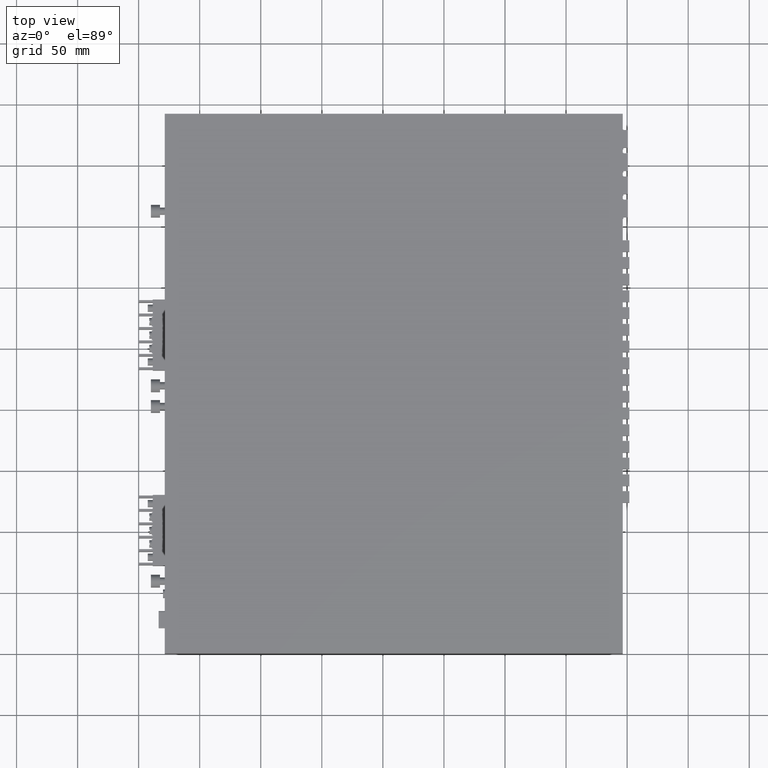
[diagram: clean part render]
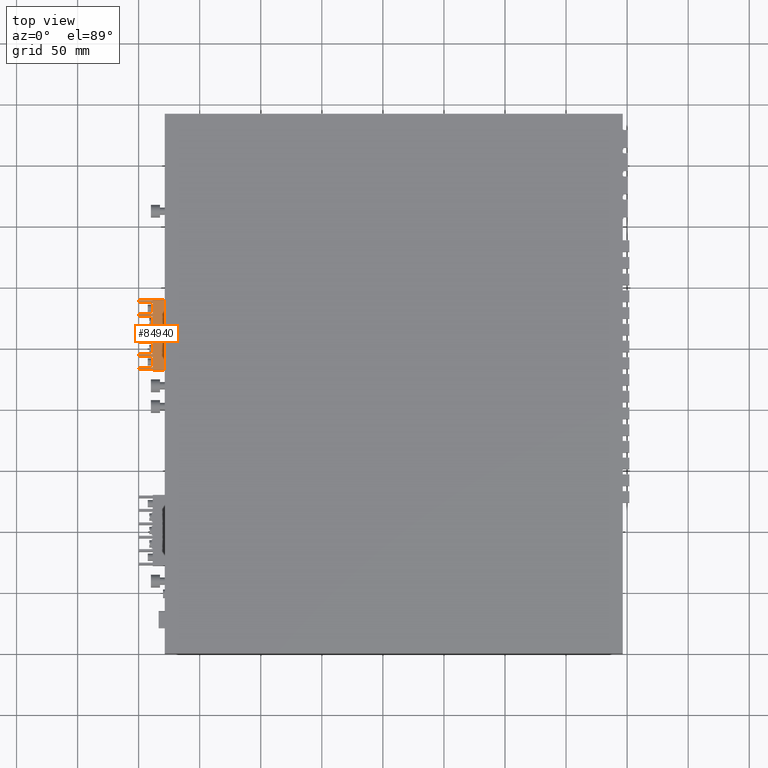
[diagram: same view with one face highlighted and labeled with its STEP entity id]
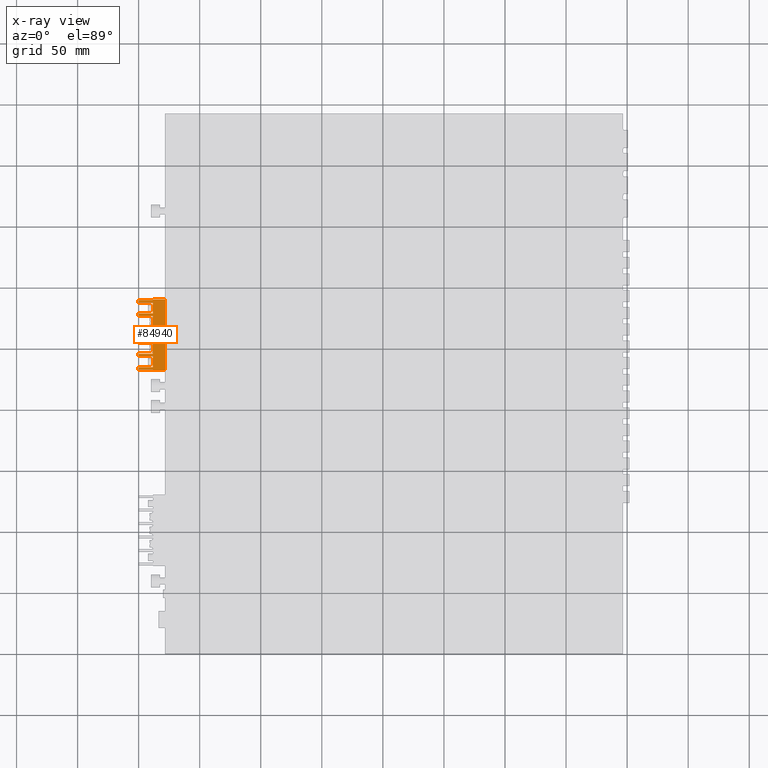
[diagram: x-ray of the same camera — body ghosted, the highlighted face saturated]
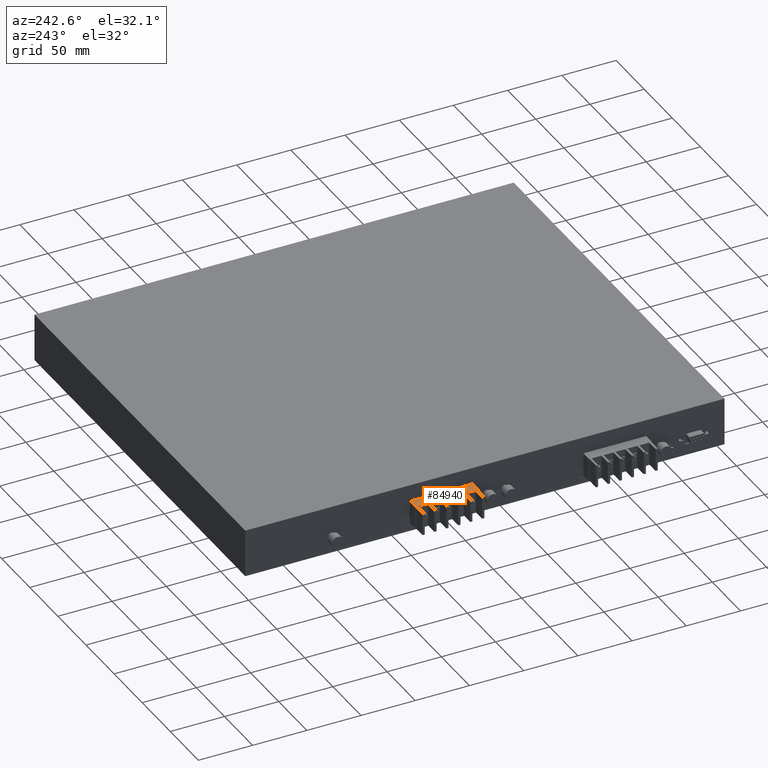
[diagram: same view with one face highlighted and labeled with its STEP entity id]
A machine part, top view. The second image highlights one B-rep face of the part: STEP entity #84940.
The next image is the same camera in x-ray: the body ghosted, the highlighted face saturated — about 0% of this face is hidden behind the body in this view.
A second angle (auxiliary view) of the same face is appended — the face is thin or edge-on in the first view.
In plain terms, the highlighted planar face has unit normal (0, 0, 1).
Its self-contained STEP definition (entity closure, byte-faithful):
#36770=CARTESIAN_POINT('',(69.4060130425647,-10.9963677763395,0.));
#36780=DIRECTION('',(0.,0.,-1.));
#36790=VECTOR('',#36780,1.);
#36800=LINE('',#36770,#36790);
#36810=CARTESIAN_POINT('',(69.4060130425647,-10.9963677763395,
0.199999999980264));
#36820=VERTEX_POINT('',#36810);
#36830=CARTESIAN_POINT('',(69.4060130425647,-10.9963677763395,
-9.90000000001973));
#36840=VERTEX_POINT('',#36830);
#36850=EDGE_CURVE('',#36820,#36840,#36800,.T.);
#39360=CARTESIAN_POINT('',(22.9060130425647,-10.9963677763395,
-9.90000000001973));
#39370=VERTEX_POINT('',#39360);
#39400=CARTESIAN_POINT('',(0.,-10.9963677763395,-9.90000000001973));
#39410=DIRECTION('',(-1.,0.,0.));
#39420=VECTOR('',#39410,1.);
#39430=LINE('',#39400,#39420);
#39440=CARTESIAN_POINT('',(13.9060130425647,-10.9963677763395,
-9.90000000001973));
#39450=VERTEX_POINT('',#39440);
#39460=EDGE_CURVE('',#39370,#39450,#39430,.T.);
#48180=CARTESIAN_POINT('',(44.9060130425647,-10.9963677763395,0.));
#48190=DIRECTION('',(0.,0.,1.));
#48200=VECTOR('',#48190,1.);
#48210=LINE('',#48180,#48200);
#48220=CARTESIAN_POINT('',(44.9060130425647,-10.9963677763395,
-21.4000000000197));
#48230=VERTEX_POINT('',#48220);
#48240=CARTESIAN_POINT('',(44.9060130425647,-10.9963677763395,
-9.90000000001973));
#48250=VERTEX_POINT('',#48240);
#48260=EDGE_CURVE('',#48230,#48250,#48210,.T.);
#52240=CARTESIAN_POINT('',(0.,-10.9963677763395,-9.90000000001973));
#52250=DIRECTION('',(-1.,0.,0.));
#52260=VECTOR('',#52250,1.);
#52270=LINE('',#52240,#52260);
#52280=CARTESIAN_POINT('',(35.9060130425647,-10.9963677763395,
-9.90000000001973));
#52290=VERTEX_POINT('',#52280);
#52300=EDGE_CURVE('',#48250,#52290,#52270,.T.);
#53780=CARTESIAN_POINT('',(24.9060130425647,-10.9963677763395,
-21.4000000000197));
#53790=VERTEX_POINT('',#53780);
#53840=CARTESIAN_POINT('',(0.,-10.9963677763395,-21.4000000000197));
#53850=DIRECTION('',(1.,0.,0.));
#53860=VECTOR('',#53850,1.);
#53870=LINE('',#53840,#53860);
#53880=CARTESIAN_POINT('',(22.9060130425647,-10.9963677763395,
-21.4000000000197));
#53890=VERTEX_POINT('',#53880);
#53900=EDGE_CURVE('',#53890,#53790,#53870,.T.);
#57490=CARTESIAN_POINT('',(11.4060130425647,-10.9963677763395,
0.199999999980264));
#57500=VERTEX_POINT('',#57490);
#57530=CARTESIAN_POINT('',(0.,-10.9963677763395,0.199999999980264));
#57540=DIRECTION('',(-1.,0.,0.));
#57550=VECTOR('',#57540,1.);
#57560=LINE('',#57530,#57550);
#57570=EDGE_CURVE('',#36820,#57500,#57560,.T.);
#75580=CARTESIAN_POINT('',(57.9060130425647,-10.9963677763395,
-21.4000000000197));
#75590=VERTEX_POINT('',#75580);
#75620=CARTESIAN_POINT('',(0.,-10.9963677763395,-21.4000000000197));
#75630=DIRECTION('',(1.,0.,0.));
#75640=VECTOR('',#75630,1.);
#75650=LINE('',#75620,#75640);
#75660=CARTESIAN_POINT('',(55.9060130425647,-10.9963677763395,
-21.4000000000197));
#75670=VERTEX_POINT('',#75660);
#75680=EDGE_CURVE('',#75670,#75590,#75650,.T.);
#83220=CARTESIAN_POINT('',(9.95594689256465,-10.9963677763395,
0.740066149980265));
#83230=DIRECTION('',(-0.,1.,0.));
#83240=DIRECTION('',(1.,0.,0.));
#83250=AXIS2_PLACEMENT_3D('',#83220,#83230,#83240);
#83260=PLANE('',#83250);
#83270=ORIENTED_EDGE('',*,*,#36850,.T.);
#83280=ORIENTED_EDGE('',*,*,#57570,.F.);
#83290=CARTESIAN_POINT('',(11.4060130425647,-10.9963677763395,0.));
#83300=DIRECTION('',(0.,0.,1.));
#83310=VECTOR('',#83300,1.);
#83320=LINE('',#83290,#83310);
#83330=CARTESIAN_POINT('',(11.4060130425647,-10.9963677763395,
-9.90000000001973));
#83340=VERTEX_POINT('',#83330);
#83350=EDGE_CURVE('',#83340,#57500,#83320,.T.);
#83360=ORIENTED_EDGE('',*,*,#83350,.T.);
#83370=CARTESIAN_POINT('',(0.,-10.9963677763395,-9.90000000001973));
#83380=DIRECTION('',(-1.,0.,0.));
#83390=VECTOR('',#83380,1.);
#83400=LINE('',#83370,#83390);
#83410=CARTESIAN_POINT('',(11.9060130425647,-10.9963677763395,
-9.90000000001973));
#83420=VERTEX_POINT('',#83410);
#83430=EDGE_CURVE('',#83420,#83340,#83400,.T.);
#83440=ORIENTED_EDGE('',*,*,#83430,.T.);
#83450=CARTESIAN_POINT('',(11.9060130425647,-10.9963677763395,0.));
#83460=DIRECTION('',(0.,0.,1.));
#83470=VECTOR('',#83460,1.);
#83480=LINE('',#83450,#83470);
#83490=CARTESIAN_POINT('',(11.9060130425647,-10.9963677763395,
-21.4000000000197));
#83500=VERTEX_POINT('',#83490);
#83510=EDGE_CURVE('',#83500,#83420,#83480,.T.);
#83520=ORIENTED_EDGE('',*,*,#83510,.T.);
#83530=CARTESIAN_POINT('',(0.,-10.9963677763395,-21.4000000000197));
#83540=DIRECTION('',(1.,0.,0.));
#83550=VECTOR('',#83540,1.);
#83560=LINE('',#83530,#83550);
#83570=CARTESIAN_POINT('',(13.9060130425647,-10.9963677763395,
-21.4000000000197));
#83580=VERTEX_POINT('',#83570);
#83590=EDGE_CURVE('',#83500,#83580,#83560,.T.);
#83600=ORIENTED_EDGE('',*,*,#83590,.F.);
#83610=CARTESIAN_POINT('',(13.9060130425647,-10.9963677763395,0.));
#83620=DIRECTION('',(0.,0.,-1.));
#83630=VECTOR('',#83620,1.);
#83640=LINE('',#83610,#83630);
#83650=EDGE_CURVE('',#39450,#83580,#83640,.T.);
#83660=ORIENTED_EDGE('',*,*,#83650,.T.);
#83670=ORIENTED_EDGE('',*,*,#39460,.T.);
#83680=CARTESIAN_POINT('',(22.9060130425647,-10.9963677763395,0.));
#83690=DIRECTION('',(0.,0.,1.));
#83700=VECTOR('',#83690,1.);
#83710=LINE('',#83680,#83700);
#83720=EDGE_CURVE('',#53890,#39370,#83710,.T.);
#83730=ORIENTED_EDGE('',*,*,#83720,.T.);
#83740=ORIENTED_EDGE('',*,*,#53900,.F.);
#83750=CARTESIAN_POINT('',(24.9060130425647,-10.9963677763395,0.));
#83760=DIRECTION('',(0.,0.,-1.));
#83770=VECTOR('',#83760,1.);
#83780=LINE('',#83750,#83770);
#83790=CARTESIAN_POINT('',(24.9060130425647,-10.9963677763395,
-9.90000000001973));
#83800=VERTEX_POINT('',#83790);
#83810=EDGE_CURVE('',#83800,#53790,#83780,.T.);
#83820=ORIENTED_EDGE('',*,*,#83810,.T.);
#83830=CARTESIAN_POINT('',(0.,-10.9963677763395,-9.90000000001973));
#83840=DIRECTION('',(-1.,0.,0.));
#83850=VECTOR('',#83840,1.);
#83860=LINE('',#83830,#83850);
#83870=CARTESIAN_POINT('',(33.9060130425647,-10.9963677763395,
-9.90000000001973));
#83880=VERTEX_POINT('',#83870);
#83890=EDGE_CURVE('',#83880,#83800,#83860,.T.);
#83900=ORIENTED_EDGE('',*,*,#83890,.T.);
#83910=CARTESIAN_POINT('',(33.9060130425647,-10.9963677763395,0.));
#83920=DIRECTION('',(0.,0.,1.));
#83930=VECTOR('',#83920,1.);
#83940=LINE('',#83910,#83930);
#83950=CARTESIAN_POINT('',(33.9060130425647,-10.9963677763395,
-21.4000000000197));
#83960=VERTEX_POINT('',#83950);
#83970=EDGE_CURVE('',#83960,#83880,#83940,.T.);
#83980=ORIENTED_EDGE('',*,*,#83970,.T.);
#83990=CARTESIAN_POINT('',(0.,-10.9963677763395,-21.4000000000197));
#84000=DIRECTION('',(1.,0.,0.));
#84010=VECTOR('',#84000,1.);
#84020=LINE('',#83990,#84010);
#84030=CARTESIAN_POINT('',(35.9060130425647,-10.9963677763395,
-21.4000000000197));
#84040=VERTEX_POINT('',#84030);
#84050=EDGE_CURVE('',#83960,#84040,#84020,.T.);
#84060=ORIENTED_EDGE('',*,*,#84050,.F.);
#84070=CARTESIAN_POINT('',(35.9060130425647,-10.9963677763395,0.));
#84080=DIRECTION('',(0.,0.,-1.));
#84090=VECTOR('',#84080,1.);
#84100=LINE('',#84070,#84090);
#84110=EDGE_CURVE('',#52290,#84040,#84100,.T.);
#84120=ORIENTED_EDGE('',*,*,#84110,.T.);
#84130=ORIENTED_EDGE('',*,*,#52300,.T.);
#84140=ORIENTED_EDGE('',*,*,#48260,.T.);
#84150=CARTESIAN_POINT('',(0.,-10.9963677763395,-21.4000000000197));
#84160=DIRECTION('',(1.,0.,0.));
#84170=VECTOR('',#84160,1.);
#84180=LINE('',#84150,#84170);
#84190=CARTESIAN_POINT('',(46.9060130425647,-10.9963677763395,
-21.4000000000197));
#84200=VERTEX_POINT('',#84190);
#84210=EDGE_CURVE('',#48230,#84200,#84180,.T.);
#84220=ORIENTED_EDGE('',*,*,#84210,.F.);
#84230=CARTESIAN_POINT('',(46.9060130425647,-10.9963677763395,0.));
#84240=DIRECTION('',(0.,0.,-1.));
#84250=VECTOR('',#84240,1.);
#84260=LINE('',#84230,#84250);
#84270=CARTESIAN_POINT('',(46.9060130425647,-10.9963677763395,
-9.90000000001973));
#84280=VERTEX_POINT('',#84270);
#84290=EDGE_CURVE('',#84280,#84200,#84260,.T.);
#84300=ORIENTED_EDGE('',*,*,#84290,.T.);
#84310=CARTESIAN_POINT('',(0.,-10.9963677763395,-9.90000000001973));
#84320=DIRECTION('',(-1.,0.,0.));
#84330=VECTOR('',#84320,1.);
#84340=LINE('',#84310,#84330);
#84350=CARTESIAN_POINT('',(55.9060130425647,-10.9963677763395,
-9.90000000001973));
#84360=VERTEX_POINT('',#84350);
#84370=EDGE_CURVE('',#84360,#84280,#84340,.T.);
#84380=ORIENTED_EDGE('',*,*,#84370,.T.);
#84390=CARTESIAN_POINT('',(55.9060130425647,-10.9963677763395,0.));
#84400=DIRECTION('',(0.,0.,1.));
#84410=VECTOR('',#84400,1.);
#84420=LINE('',#84390,#84410);
#84430=EDGE_CURVE('',#75670,#84360,#84420,.T.);
#84440=ORIENTED_EDGE('',*,*,#84430,.T.);
#84450=ORIENTED_EDGE('',*,*,#75680,.F.);
#84460=CARTESIAN_POINT('',(57.9060130425647,-10.9963677763395,0.));
#84470=DIRECTION('',(0.,0.,-1.));
#84480=VECTOR('',#84470,1.);
#84490=LINE('',#84460,#84480);
#84500=CARTESIAN_POINT('',(57.9060130425647,-10.9963677763395,
-9.90000000001973));
#84510=VERTEX_POINT('',#84500);
#84520=EDGE_CURVE('',#84510,#75590,#84490,.T.);
#84530=ORIENTED_EDGE('',*,*,#84520,.T.);
#84540=CARTESIAN_POINT('',(0.,-10.9963677763395,-9.90000000001973));
#84550=DIRECTION('',(-1.,0.,0.));
#84560=VECTOR('',#84550,1.);
#84570=LINE('',#84540,#84560);
#84580=CARTESIAN_POINT('',(66.9060130425647,-10.9963677763395,
-9.90000000001973));
#84590=VERTEX_POINT('',#84580);
#84600=EDGE_CURVE('',#84590,#84510,#84570,.T.);
#84610=ORIENTED_EDGE('',*,*,#84600,.T.);
#84620=CARTESIAN_POINT('',(66.9060130425647,-10.9963677763395,0.));
#84630=DIRECTION('',(0.,0.,1.));
#84640=VECTOR('',#84630,1.);
#84650=LINE('',#84620,#84640);
#84660=CARTESIAN_POINT('',(66.9060130425647,-10.9963677763395,
-21.4000000000197));
#84670=VERTEX_POINT('',#84660);
#84680=EDGE_CURVE('',#84670,#84590,#84650,.T.);
#84690=ORIENTED_EDGE('',*,*,#84680,.T.);
#84700=CARTESIAN_POINT('',(0.,-10.9963677763395,-21.4000000000197));
#84710=DIRECTION('',(1.,0.,0.));
#84720=VECTOR('',#84710,1.);
#84730=LINE('',#84700,#84720);
#84740=CARTESIAN_POINT('',(68.9060130425647,-10.9963677763395,
-21.4000000000197));
#84750=VERTEX_POINT('',#84740);
#84760=EDGE_CURVE('',#84670,#84750,#84730,.T.);
#84770=ORIENTED_EDGE('',*,*,#84760,.F.);
#84780=CARTESIAN_POINT('',(68.9060130425647,-10.9963677763395,0.));
#84790=DIRECTION('',(0.,0.,-1.));
#84800=VECTOR('',#84790,1.);
#84810=LINE('',#84780,#84800);
#84820=CARTESIAN_POINT('',(68.9060130425647,-10.9963677763395,
-9.90000000001973));
#84830=VERTEX_POINT('',#84820);
#84840=EDGE_CURVE('',#84830,#84750,#84810,.T.);
#84850=ORIENTED_EDGE('',*,*,#84840,.T.);
#84860=CARTESIAN_POINT('',(0.,-10.9963677763395,-9.90000000001973));
#84870=DIRECTION('',(-1.,0.,0.));
#84880=VECTOR('',#84870,1.);
#84890=LINE('',#84860,#84880);
#84900=EDGE_CURVE('',#36840,#84830,#84890,.T.);
#84910=ORIENTED_EDGE('',*,*,#84900,.T.);
#84920=EDGE_LOOP('',(#84910,#84850,#84770,#84690,#84610,#84530,#84450,
#84440,#84380,#84300,#84220,#84140,#84130,#84120,#84060,#83980,#83900,
#83820,#83740,#83730,#83670,#83660,#83600,#83520,#83440,#83360,#83280,
#83270));
#84930=FACE_OUTER_BOUND('',#84920,.T.);
#84940=ADVANCED_FACE('',(#84930),#83260,.T.);